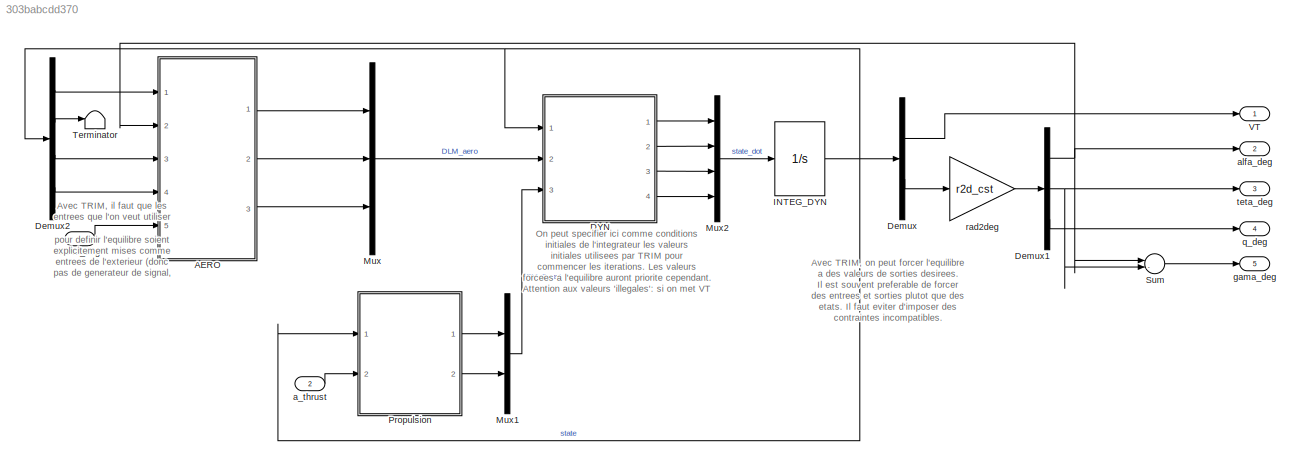
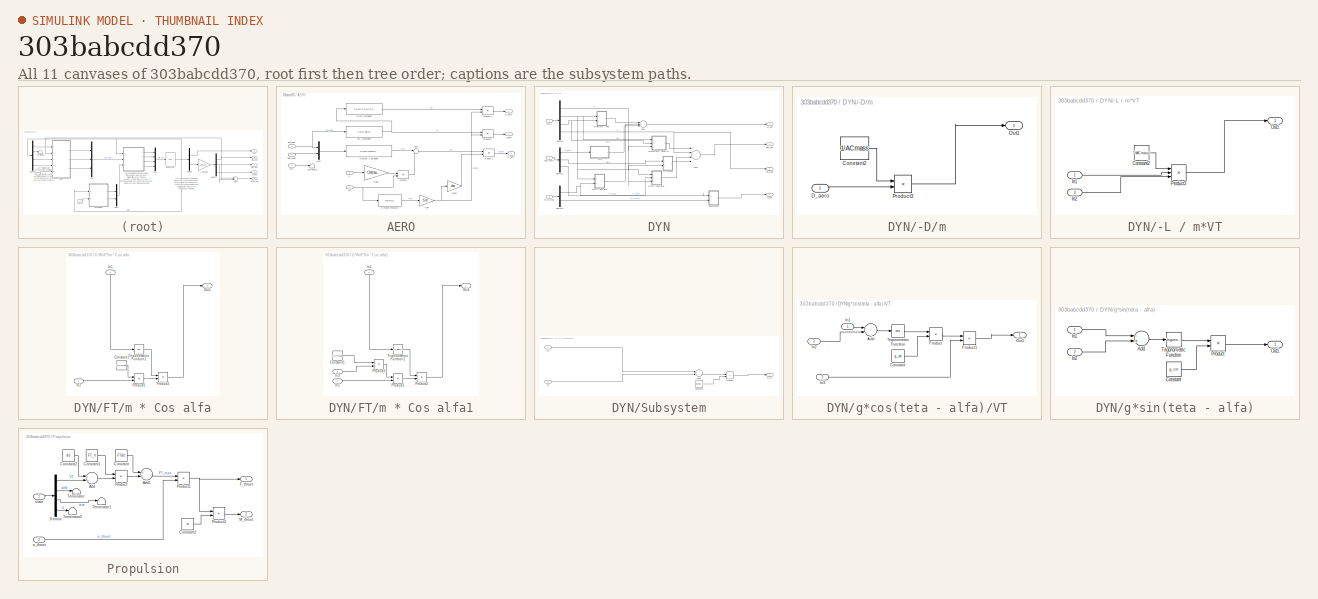
[diagram: thumbnail index - all 11 canvases of the model, root first then tree order]
MODEL slx_303babcdd370
KIND model
CONFIG AbsTol = auto
CONFIG FixedStep = auto
CONFIG MaxStep = auto
CONFIG MinStep = auto
CONFIG RelTol = 1e-3
CONFIG SampleTimeConstraint = Unconstrained
CONFIG Solver = ode45
CONFIG SolverMode = SingleTasking
CONFIG SolverName = ode45
CONFIG StartTime = 0.0
CONFIG StopTime = 10.0
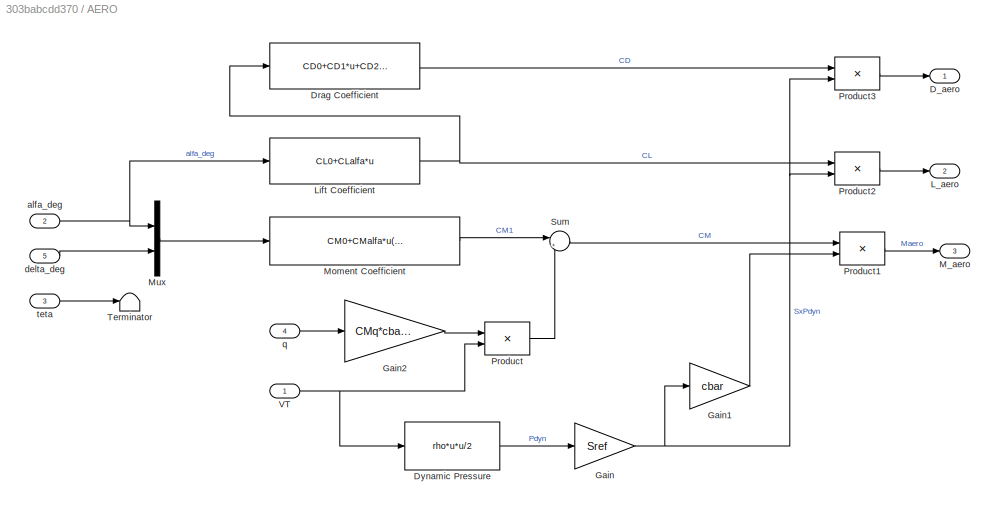
BLOCK [SubSystem] AERO
  Ports = [5, 3]
  RequestExecContextInheritance = off
  Variant = off
BLOCK [Outport] AERO/D_aero
  IconDisplay = Port number
BLOCK [Fcn] AERO/Drag Coefficient
  Expr = CD0+CD1*u+CD2*u*u
BLOCK [Fcn] AERO/Dynamic Pressure
  Expr = rho*u*u/2
BLOCK [Gain] AERO/Gain
  Gain = Sref
BLOCK [Gain] AERO/Gain1
  Gain = cbar
BLOCK [Gain] AERO/Gain2
  Gain = CMq*cbar/2
BLOCK [Outport] AERO/L_aero
  IconDisplay = Port number
  Port = 2
BLOCK [Fcn] AERO/Lift Coefficient
  Expr = CL0+CLalfa*u
BLOCK [Outport] AERO/M_aero
  IconDisplay = Port number
  Port = 3
BLOCK [Fcn] AERO/Moment Coefficient
  Expr = CM0+CMalfa*u(1)+CMdelta*u(2)
BLOCK [Mux] AERO/Mux
  DisplayOption = bar
  Inputs = 2
  Ports = [2, 1]
BLOCK [Product] AERO/Product
  Inputs = */
  Ports = [2, 1]
  RndMeth = Floor
BLOCK [Product] AERO/Product1
  Inputs = **
  Ports = [2, 1]
  RndMeth = Floor
BLOCK [Product] AERO/Product2
  Inputs = **
  Ports = [2, 1]
  RndMeth = Floor
BLOCK [Product] AERO/Product3
  Inputs = **
  Ports = [2, 1]
  RndMeth = Floor
BLOCK [Sum] AERO/Sum
  IconShape = round
  Inputs = |++
  Ports = [2, 1]
BLOCK [Terminator] AERO/Terminator
BLOCK [Inport] AERO/VT
  IconDisplay = Port number
BLOCK [Inport] AERO/alfa_deg
  IconDisplay = Port number
  Port = 2
BLOCK [Inport] AERO/delta_deg
  IconDisplay = Port number
  Port = 5
BLOCK [Inport] AERO/q
  IconDisplay = Port number
  Port = 4
BLOCK [Inport] AERO/teta
  IconDisplay = Port number
  Port = 3
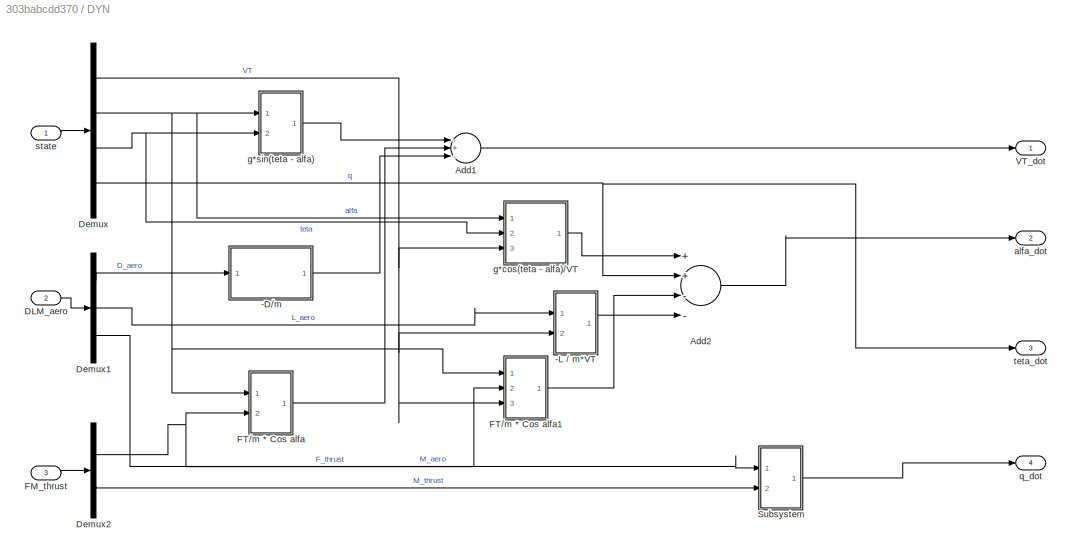
BLOCK [SubSystem] DYN
  Ports = [3, 4]
  RequestExecContextInheritance = off
  Variant = off
BLOCK [SubSystem] DYN/-D//m
  Ports = [1, 1]
  RequestExecContextInheritance = off
  Variant = off
BLOCK [Constant] DYN/-D//m/Constant2
  Value = 1/ACmass
BLOCK [Inport] DYN/-D//m/D_aero 
  IconDisplay = Port number
BLOCK [Outport] DYN/-D//m/Out1
  IconDisplay = Port number
BLOCK [Product] DYN/-D//m/Product3
  InputSameDT = off
  OutDataTypeStr = Inherit: Inherit via internal rule
  Ports = [2, 1]
  RndMeth = Floor
  SaturateOnIntegerOverflow = off
BLOCK [SubSystem] DYN/-L // m*VT
  Ports = [2, 1]
  RequestExecContextInheritance = off
  Variant = off
BLOCK [Constant] DYN/-L // m*VT/Constant2
  Value = 1/ACmass
BLOCK [Inport] DYN/-L // m*VT/In1
  IconDisplay = Port number
BLOCK [Inport] DYN/-L // m*VT/In2
  IconDisplay = Port number
  Port = 2
BLOCK [Outport] DYN/-L // m*VT/Out1
  IconDisplay = Port number
BLOCK [Product] DYN/-L // m*VT/Product3
  InputSameDT = off
  Inputs = **/
  OutDataTypeStr = Inherit: Inherit via internal rule
  Ports = [3, 1]
  RndMeth = Floor
  SaturateOnIntegerOverflow = off
BLOCK [Sum] DYN/Add1
  InputSameDT = off
  Inputs = -+-
  OutDataTypeStr = Inherit: Inherit via internal rule
  Ports = [3, 1]
  SaturateOnIntegerOverflow = off
BLOCK [Sum] DYN/Add2
  InputSameDT = off
  Inputs = ++--
  OutDataTypeStr = Inherit: Inherit via internal rule
  Ports = [4, 1]
  SaturateOnIntegerOverflow = off
BLOCK [Inport] DYN/DLM_aero
  IconDisplay = Port number
  Port = 2
BLOCK [Demux] DYN/Demux
  Ports = [1, 4]
BLOCK [Demux] DYN/Demux1
  Outputs = 3
  Ports = [1, 3]
BLOCK [Demux] DYN/Demux2
  Outputs = 2
  Ports = [1, 2]
BLOCK [Inport] DYN/FM_thrust
  IconDisplay = Port number
  Port = 3
BLOCK [SubSystem] DYN/FT//m * Cos alfa
  Ports = [2, 1]
  RequestExecContextInheritance = off
  Variant = off
BLOCK [Constant] DYN/FT//m * Cos alfa/Constant1
  Value = 1/ACmass
BLOCK [Inport] DYN/FT//m * Cos alfa/In1
  IconDisplay = Port number
BLOCK [Inport] DYN/FT//m * Cos alfa/In2
  IconDisplay = Port number
  Port = 2
BLOCK [Outport] DYN/FT//m * Cos alfa/Out1
  IconDisplay = Port number
BLOCK [Product] DYN/FT//m * Cos alfa/Product1
  InputSameDT = off
  OutDataTypeStr = Inherit: Inherit via internal rule
  Ports = [2, 1]
  RndMeth = Floor
  SaturateOnIntegerOverflow = off
BLOCK [Product] DYN/FT//m * Cos alfa/Product2
  InputSameDT = off
  OutDataTypeStr = Inherit: Inherit via internal rule
  Ports = [2, 1]
  RndMeth = Floor
  SaturateOnIntegerOverflow = off
BLOCK [Trigonometry] DYN/FT//m * Cos alfa/Trigonometric Function1
  Operator = cos
  Ports = [1, 1]
BLOCK [SubSystem] DYN/FT//m * Cos alfa1
  Ports = [3, 1]
  RequestExecContextInheritance = off
  Variant = off
BLOCK [Constant] DYN/FT//m * Cos alfa1/Constant1
  Value = 1/ACmass
BLOCK [Inport] DYN/FT//m * Cos alfa1/In1
  IconDisplay = Port number
BLOCK [Inport] DYN/FT//m * Cos alfa1/In2
  IconDisplay = Port number
  Port = 2
BLOCK [Inport] DYN/FT//m * Cos alfa1/In3
  IconDisplay = Port number
  Port = 3
BLOCK [Outport] DYN/FT//m * Cos alfa1/Out1
  IconDisplay = Port number
BLOCK [Product] DYN/FT//m * Cos alfa1/Product1
  InputSameDT = off
  OutDataTypeStr = Inherit: Inherit via internal rule
  Ports = [2, 1]
  RndMeth = Floor
  SaturateOnIntegerOverflow = off
BLOCK [Product] DYN/FT//m * Cos alfa1/Product2
  InputSameDT = off
  OutDataTypeStr = Inherit: Inherit via internal rule
  Ports = [2, 1]
  RndMeth = Floor
  SaturateOnIntegerOverflow = off
BLOCK [Product] DYN/FT//m * Cos alfa1/Product3
  InputSameDT = off
  Inputs = */
  OutDataTypeStr = Inherit: Inherit via internal rule
  Ports = [2, 1]
  RndMeth = Floor
  SaturateOnIntegerOverflow = off
BLOCK [Trigonometry] DYN/FT//m * Cos alfa1/Trigonometric Function1
  Ports = [1, 1]
BLOCK [SubSystem] DYN/Subsystem
  Ports = [2, 1]
  RequestExecContextInheritance = off
  Variant = off
BLOCK [Sum] DYN/Subsystem/Add3
  InputSameDT = off
  OutDataTypeStr = Inherit: Inherit via internal rule
  Ports = [2, 1]
  SaturateOnIntegerOverflow = off
BLOCK [Constant] DYN/Subsystem/Constant
  Value = ACinertia_yy
BLOCK [Inport] DYN/Subsystem/In1
  IconDisplay = Port number
BLOCK [Inport] DYN/Subsystem/In2
  IconDisplay = Port number
  Port = 2
BLOCK [Outport] DYN/Subsystem/Out1
  IconDisplay = Port number
BLOCK [Product] DYN/Subsystem/Product
  InputSameDT = off
  Inputs = */
  OutDataTypeStr = Inherit: Inherit via internal rule
  Ports = [2, 1]
  RndMeth = Floor
  SaturateOnIntegerOverflow = off
BLOCK [Outport] DYN/VT_dot
  IconDisplay = Port number
BLOCK [Outport] DYN/alfa_dot
  IconDisplay = Port number
  Port = 2
BLOCK [SubSystem] DYN/g*cos(teta - alfa)//VT
  Ports = [3, 1]
  RequestExecContextInheritance = off
  Variant = off
BLOCK [Sum] DYN/g*cos(teta - alfa)//VT/Add
  InputSameDT = off
  Inputs = -+
  OutDataTypeStr = Inherit: Inherit via internal rule
  Ports = [2, 1]
  SaturateOnIntegerOverflow = off
BLOCK [Constant] DYN/g*cos(teta - alfa)//VT/Constant
  Value = g_cst
BLOCK [Inport] DYN/g*cos(teta - alfa)//VT/In1
  IconDisplay = Port number
BLOCK [Inport] DYN/g*cos(teta - alfa)//VT/In2
  IconDisplay = Port number
  Port = 2
BLOCK [Inport] DYN/g*cos(teta - alfa)//VT/In3
  IconDisplay = Port number
  Port = 3
BLOCK [Outport] DYN/g*cos(teta - alfa)//VT/Out1
  IconDisplay = Port number
BLOCK [Product] DYN/g*cos(teta - alfa)//VT/Product
  InputSameDT = off
  OutDataTypeStr = Inherit: Inherit via internal rule
  Ports = [2, 1]
  RndMeth = Floor
  SaturateOnIntegerOverflow = off
BLOCK [Product] DYN/g*cos(teta - alfa)//VT/Product1
  InputSameDT = off
  Inputs = */
  OutDataTypeStr = Inherit: Inherit via internal rule
  Ports = [2, 1]
  RndMeth = Floor
  SaturateOnIntegerOverflow = off
BLOCK [Trigonometry] DYN/g*cos(teta - alfa)//VT/Trigonometric Function
  Operator = cos
  Ports = [1, 1]
BLOCK [SubSystem] DYN/g*sin(teta - alfa)
  Ports = [2, 1]
  RequestExecContextInheritance = off
  Variant = off
BLOCK [Sum] DYN/g*sin(teta - alfa)/Add
  InputSameDT = off
  Inputs = -+
  OutDataTypeStr = Inherit: Inherit via internal rule
  Ports = [2, 1]
  SaturateOnIntegerOverflow = off
BLOCK [Constant] DYN/g*sin(teta - alfa)/Constant
  Value = g_cst
BLOCK [Inport] DYN/g*sin(teta - alfa)/In1
  IconDisplay = Port number
BLOCK [Inport] DYN/g*sin(teta - alfa)/In2
  IconDisplay = Port number
  Port = 2
BLOCK [Outport] DYN/g*sin(teta - alfa)/Out1
  IconDisplay = Port number
BLOCK [Product] DYN/g*sin(teta - alfa)/Product
  InputSameDT = off
  OutDataTypeStr = Inherit: Inherit via internal rule
  Ports = [2, 1]
  RndMeth = Floor
  SaturateOnIntegerOverflow = off
BLOCK [Trigonometry] DYN/g*sin(teta - alfa)/Trigonometric Function
  Ports = [1, 1]
BLOCK [Outport] DYN/q_dot
  IconDisplay = Port number
  Port = 4
BLOCK [Inport] DYN/state
  IconDisplay = Port number
BLOCK [Outport] DYN/teta_dot
  IconDisplay = Port number
  Port = 3
BLOCK [Demux] Demux
  Outputs = [1,3]
  Ports = [1, 2]
BLOCK [Demux] Demux1
  Outputs = 3
  Ports = [1, 3]
BLOCK [Demux] Demux2
  Ports = [1, 4]
BLOCK [Integrator] INTEG_DYN
  InitialCondition = X0
  Ports = [1, 1]
BLOCK [Mux] Mux
  DisplayOption = bar
  Inputs = 3
  Ports = [3, 1]
BLOCK [Mux] Mux1
  DisplayOption = bar
  Inputs = 2
  Ports = [2, 1]
BLOCK [Mux] Mux2
  DisplayOption = bar
  Ports = [4, 1]
BLOCK [SubSystem] Propulsion
  Ports = [2, 2]
  RequestExecContextInheritance = off
  Variant = off
BLOCK [Sum] Propulsion/Add
  InputSameDT = off
  Inputs = -+
  OutDataTypeStr = Inherit: Inherit via internal rule
  Ports = [2, 1]
  SaturateOnIntegerOverflow = off
BLOCK [Sum] Propulsion/Add1
  InputSameDT = off
  OutDataTypeStr = Inherit: Inherit via internal rule
  Ports = [2, 1]
  SaturateOnIntegerOverflow = off
BLOCK [Constant] Propulsion/Constant
  Value = FT80
BLOCK [Constant] Propulsion/Constant1
  Value = FT_V
BLOCK [Constant] Propulsion/Constant2
  Value = 80
BLOCK [Constant] Propulsion/Constant3
  Value = xt
BLOCK [Demux] Propulsion/Demux
  Ports = [1, 4]
BLOCK [Outport] Propulsion/F_thrust
  IconDisplay = Port number
BLOCK [Outport] Propulsion/M_thrust
  IconDisplay = Port number
  Port = 2
BLOCK [Product] Propulsion/Product
  InputSameDT = off
  OutDataTypeStr = Inherit: Inherit via internal rule
  Ports = [2, 1]
  RndMeth = Floor
  SaturateOnIntegerOverflow = off
BLOCK [Product] Propulsion/Product1
  InputSameDT = off
  OutDataTypeStr = Inherit: Inherit via internal rule
  Ports = [2, 1]
  RndMeth = Floor
  SaturateOnIntegerOverflow = off
BLOCK [Product] Propulsion/Product2
  InputSameDT = off
  OutDataTypeStr = Inherit: Inherit via internal rule
  Ports = [2, 1]
  RndMeth = Floor
  SaturateOnIntegerOverflow = off
BLOCK [Terminator] Propulsion/Terminator
BLOCK [Terminator] Propulsion/Terminator1
BLOCK [Terminator] Propulsion/Terminator2
BLOCK [Inport] Propulsion/a_thrust
  IconDisplay = Port number
  Port = 2
BLOCK [Inport] Propulsion/state
  IconDisplay = Port number
BLOCK [Sum] Sum
  IconShape = round
  Inputs = |-+
  Ports = [2, 1]
BLOCK [Terminator] Terminator
BLOCK [Outport] VT
  IconDisplay = Port number
BLOCK [Inport] a_thrust
  IconDisplay = Port number
  Port = 2
BLOCK [Outport] alfa_deg
  IconDisplay = Port number
  Port = 2
BLOCK [Inport] delta_deg
  IconDisplay = Port number
BLOCK [Outport] gama_deg
  IconDisplay = Port number
  Port = 5
BLOCK [Outport] q_deg
  IconDisplay = Port number
  Port = 4
BLOCK [Gain] rad2deg
  Gain = r2d_cst
BLOCK [Outport] teta_deg
  IconDisplay = Port number
  Port = 3
ANNOTATION (root): Avec TRIM, il faut que les entrees que l'on veut utiliser pour definir l'equilibre soient explicitement mises comme entrees de l'exterieur (donc pas de generateur de signal, etc). Ici: entree 1 = gouvernail de profondeur delta en deg et entree 2 = propulsion a.
ANNOTATION (root): Avec TRIM, on peut forcer l'equilibre a des valeurs de sorties desirees. Il est souvent preferable de forcer des entrees et sorties plutot que des etats. Il faut eviter d'imposer des contraintes incompatibles.
ANNOTATION (root): On peut specifier ici comme conditions initiales de l'integrateur les valeurs initiales utilisees par TRIM pour commencer les iterations. Les valeurs forcees a l'equilibre auront priorite cependant. Attention aux valeurs 'illegales': si on met VT egale a zero ici on divise par VT quelque part dans le calcul des couples...
LINE AERO/Drag Coefficient:1 -> AERO/Product3:1
LINE AERO/Dynamic Pressure:1 -> AERO/Gain:1
LINE AERO/Gain1:1 -> AERO/Product1:2
LINE AERO/Gain2:1 -> AERO/Product:1
NET AERO/Gain:1 -> AERO/Gain1:1, AERO/Product2:2, AERO/Product3:2
NET AERO/Lift Coefficient:1 -> AERO/Drag Coefficient:1, AERO/Product2:1
LINE AERO/Moment Coefficient:1 -> AERO/Sum:1
LINE AERO/Mux:1 -> AERO/Moment Coefficient:1
LINE AERO/Product1:1 -> AERO/M_aero:1
LINE AERO/Product2:1 -> AERO/L_aero:1
LINE AERO/Product3:1 -> AERO/D_aero:1
LINE AERO/Product:1 -> AERO/Sum:2
LINE AERO/Sum:1 -> AERO/Product1:1
NET AERO/VT:1 -> AERO/Dynamic Pressure:1, AERO/Product:2
NET AERO/alfa_deg:1 -> AERO/Lift Coefficient:1, AERO/Mux:1
LINE AERO/delta_deg:1 -> AERO/Mux:2
LINE AERO/q:1 -> AERO/Gain2:1
LINE AERO/teta:1 -> AERO/Terminator:1
LINE AERO:1 -> Mux:1
LINE AERO:2 -> Mux:2
LINE AERO:3 -> Mux:3
LINE DYN/-D//m/Constant2:1 -> DYN/-D//m/Product3:1
LINE DYN/-D//m/D_aero :1 -> DYN/-D//m/Product3:2
LINE DYN/-D//m/Product3:1 -> DYN/-D//m/Out1:1
LINE DYN/-D//m:1 -> DYN/Add1:3
LINE DYN/-L // m*VT/Constant2:1 -> DYN/-L // m*VT/Product3:1
LINE DYN/-L // m*VT/In1:1 -> DYN/-L // m*VT/Product3:2
LINE DYN/-L // m*VT/In2:1 -> DYN/-L // m*VT/Product3:3
LINE DYN/-L // m*VT/Product3:1 -> DYN/-L // m*VT/Out1:1
LINE DYN/-L // m*VT:1 -> DYN/Add2:4
LINE DYN/Add1:1 -> DYN/VT_dot:1
LINE DYN/Add2:1 -> DYN/alfa_dot:1
LINE DYN/DLM_aero:1 -> DYN/Demux1:1
LINE DYN/Demux1:1 -> DYN/-D//m:1
LINE DYN/Demux1:2 -> DYN/-L // m*VT:1
LINE DYN/Demux1:3 -> DYN/Subsystem:1
NET DYN/Demux2:1 -> DYN/FT//m * Cos alfa1:2, DYN/FT//m * Cos alfa:2
LINE DYN/Demux2:2 -> DYN/Subsystem:2
NET DYN/Demux:1 -> DYN/-L // m*VT:2, DYN/FT//m * Cos alfa1:3, DYN/g*cos(teta - alfa)//VT:3
NET DYN/Demux:2 -> DYN/FT//m * Cos alfa1:1, DYN/FT//m * Cos alfa:1, DYN/g*cos(teta - alfa)//VT:1, DYN/g*sin(teta - alfa):1
NET DYN/Demux:3 -> DYN/g*cos(teta - alfa)//VT:2, DYN/g*sin(teta - alfa):2
NET DYN/Demux:4 -> DYN/Add2:2, DYN/teta_dot:1
LINE DYN/FM_thrust:1 -> DYN/Demux2:1
LINE DYN/FT//m * Cos alfa/Constant1:1 -> DYN/FT//m * Cos alfa/Product1:1
LINE DYN/FT//m * Cos alfa/In1:1 -> DYN/FT//m * Cos alfa/Trigonometric Function1:1
LINE DYN/FT//m * Cos alfa/In2:1 -> DYN/FT//m * Cos alfa/Product1:2
LINE DYN/FT//m * Cos alfa/Product1:1 -> DYN/FT//m * Cos alfa/Product2:2
LINE DYN/FT//m * Cos alfa/Product2:1 -> DYN/FT//m * Cos alfa/Out1:1
LINE DYN/FT//m * Cos alfa/Trigonometric Function1:1 -> DYN/FT//m * Cos alfa/Product2:1
LINE DYN/FT//m * Cos alfa1/Constant1:1 -> DYN/FT//m * Cos alfa1/Product3:1
LINE DYN/FT//m * Cos alfa1/In1:1 -> DYN/FT//m * Cos alfa1/Trigonometric Function1:1
LINE DYN/FT//m * Cos alfa1/In2:1 -> DYN/FT//m * Cos alfa1/Product1:2
LINE DYN/FT//m * Cos alfa1/In3:1 -> DYN/FT//m * Cos alfa1/Product3:2
LINE DYN/FT//m * Cos alfa1/Product1:1 -> DYN/FT//m * Cos alfa1/Product2:2
LINE DYN/FT//m * Cos alfa1/Product2:1 -> DYN/FT//m * Cos alfa1/Out1:1
LINE DYN/FT//m * Cos alfa1/Product3:1 -> DYN/FT//m * Cos alfa1/Product1:1
LINE DYN/FT//m * Cos alfa1/Trigonometric Function1:1 -> DYN/FT//m * Cos alfa1/Product2:1
LINE DYN/FT//m * Cos alfa1:1 -> DYN/Add2:3
LINE DYN/FT//m * Cos alfa:1 -> DYN/Add1:2
LINE DYN/Subsystem/Add3:1 -> DYN/Subsystem/Product:1
LINE DYN/Subsystem/Constant:1 -> DYN/Subsystem/Product:2
LINE DYN/Subsystem/In1:1 -> DYN/Subsystem/Add3:1
LINE DYN/Subsystem/In2:1 -> DYN/Subsystem/Add3:2
LINE DYN/Subsystem/Product:1 -> DYN/Subsystem/Out1:1
LINE DYN/Subsystem:1 -> DYN/q_dot:1
LINE DYN/g*cos(teta - alfa)//VT/Add:1 -> DYN/g*cos(teta - alfa)//VT/Trigonometric Function:1
LINE DYN/g*cos(teta - alfa)//VT/Constant:1 -> DYN/g*cos(teta - alfa)//VT/Product:2
LINE DYN/g*cos(teta - alfa)//VT/In1:1 -> DYN/g*cos(teta - alfa)//VT/Add:1
LINE DYN/g*cos(teta - alfa)//VT/In2:1 -> DYN/g*cos(teta - alfa)//VT/Add:2
LINE DYN/g*cos(teta - alfa)//VT/In3:1 -> DYN/g*cos(teta - alfa)//VT/Product1:2
LINE DYN/g*cos(teta - alfa)//VT/Product1:1 -> DYN/g*cos(teta - alfa)//VT/Out1:1
LINE DYN/g*cos(teta - alfa)//VT/Product:1 -> DYN/g*cos(teta - alfa)//VT/Product1:1
LINE DYN/g*cos(teta - alfa)//VT/Trigonometric Function:1 -> DYN/g*cos(teta - alfa)//VT/Product:1
LINE DYN/g*cos(teta - alfa)//VT:1 -> DYN/Add2:1
LINE DYN/g*sin(teta - alfa)/Add:1 -> DYN/g*sin(teta - alfa)/Trigonometric Function:1
LINE DYN/g*sin(teta - alfa)/Constant:1 -> DYN/g*sin(teta - alfa)/Product:2
LINE DYN/g*sin(teta - alfa)/In1:1 -> DYN/g*sin(teta - alfa)/Add:1
LINE DYN/g*sin(teta - alfa)/In2:1 -> DYN/g*sin(teta - alfa)/Add:2
LINE DYN/g*sin(teta - alfa)/Product:1 -> DYN/g*sin(teta - alfa)/Out1:1
LINE DYN/g*sin(teta - alfa)/Trigonometric Function:1 -> DYN/g*sin(teta - alfa)/Product:1
LINE DYN/g*sin(teta - alfa):1 -> DYN/Add1:1
LINE DYN/state:1 -> DYN/Demux:1
LINE DYN:1 -> Mux2:1
LINE DYN:2 -> Mux2:2
LINE DYN:3 -> Mux2:3
LINE DYN:4 -> Mux2:4
NET Demux1:1 -> AERO:2, Sum:1, alfa_deg:1
NET Demux1:2 -> Sum:2, teta_deg:1
LINE Demux1:3 -> q_deg:1
LINE Demux2:1 -> AERO:1
LINE Demux2:2 -> Terminator:1
LINE Demux2:3 -> AERO:3
LINE Demux2:4 -> AERO:4
LINE Demux:1 -> VT:1
LINE Demux:2 -> rad2deg:1
NET INTEG_DYN:1 -> DYN:1, Demux2:1, Demux:1, Propulsion:1
LINE Mux1:1 -> DYN:3
LINE Mux2:1 -> INTEG_DYN:1
LINE Mux:1 -> DYN:2
LINE Propulsion/Add1:1 -> Propulsion/Product1:1
LINE Propulsion/Add:1 -> Propulsion/Product:2
LINE Propulsion/Constant1:1 -> Propulsion/Product:1
LINE Propulsion/Constant2:1 -> Propulsion/Add:1
LINE Propulsion/Constant3:1 -> Propulsion/Product2:2
LINE Propulsion/Constant:1 -> Propulsion/Add1:1
LINE Propulsion/Demux:1 -> Propulsion/Add:2
LINE Propulsion/Demux:2 -> Propulsion/Terminator:1
LINE Propulsion/Demux:3 -> Propulsion/Terminator1:1
LINE Propulsion/Demux:4 -> Propulsion/Terminator2:1
NET Propulsion/Product1:1 -> Propulsion/F_thrust:1, Propulsion/Product2:1
LINE Propulsion/Product2:1 -> Propulsion/M_thrust:1
LINE Propulsion/Product:1 -> Propulsion/Add1:2
LINE Propulsion/a_thrust:1 -> Propulsion/Product1:2
LINE Propulsion/state:1 -> Propulsion/Demux:1
LINE Propulsion:1 -> Mux1:1
LINE Propulsion:2 -> Mux1:2
LINE Sum:1 -> gama_deg:1
LINE a_thrust:1 -> Propulsion:2
LINE delta_deg:1 -> AERO:5
LINE rad2deg:1 -> Demux1:1
note: NET lines group one-source signal fan-out (src -> all destinations, sorted); 1:1 wires keep LINE
